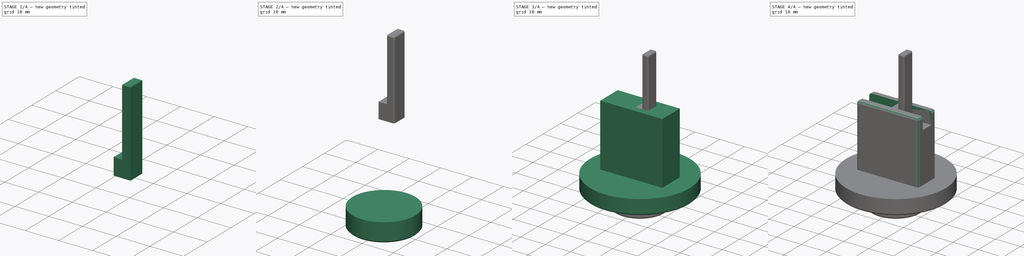
[diagram: build sequence overview — one tinted view per stage of 4, left to right]
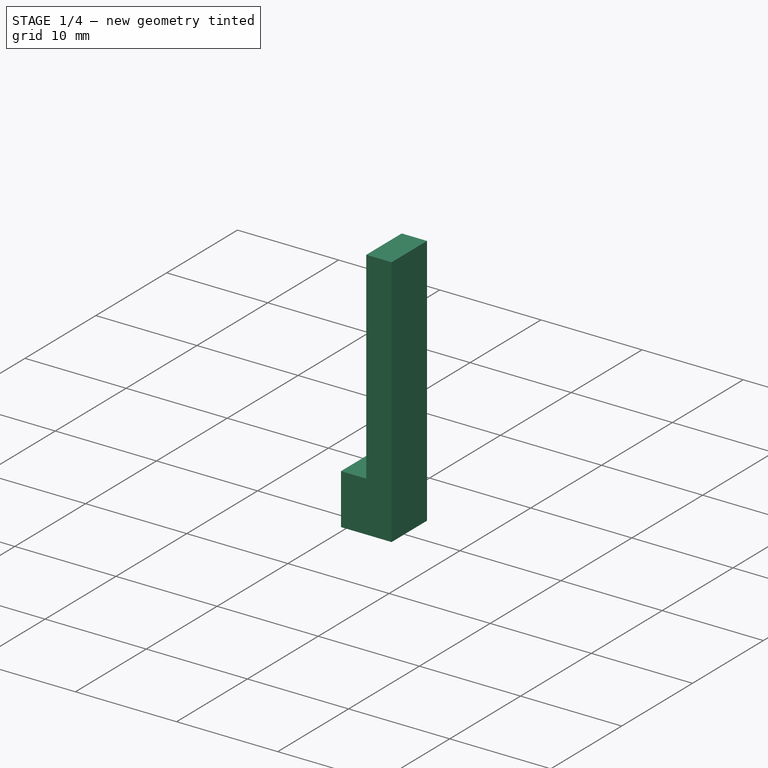
[diagram: stage 1 of 4 — iso view after this stage's code; geometry added in this stage tinted green]
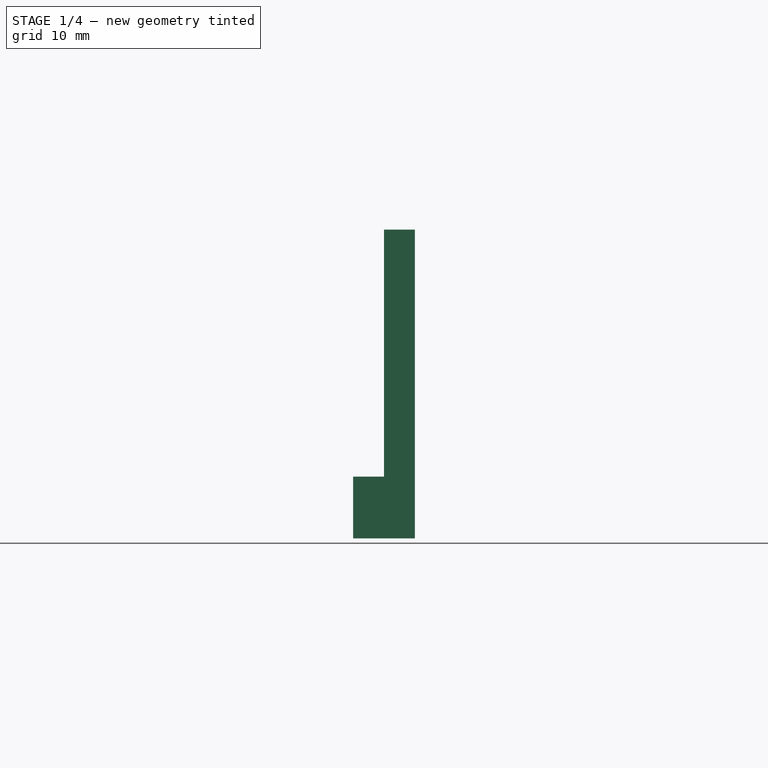
[diagram: stage 1 of 4 — front view after this stage's code; geometry added in this stage tinted green]
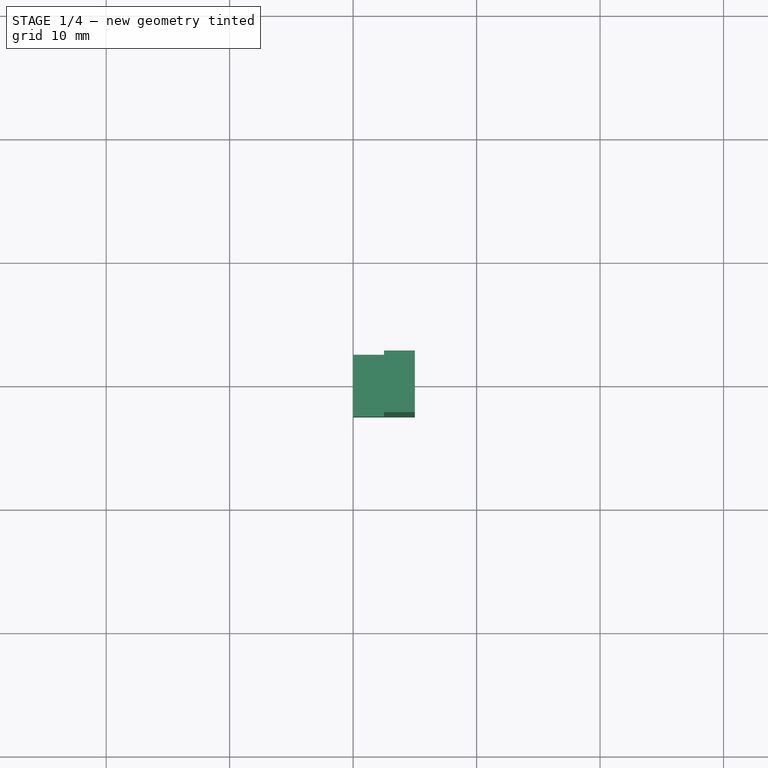
[diagram: stage 1 of 4 — top view after this stage's code; geometry added in this stage tinted green]
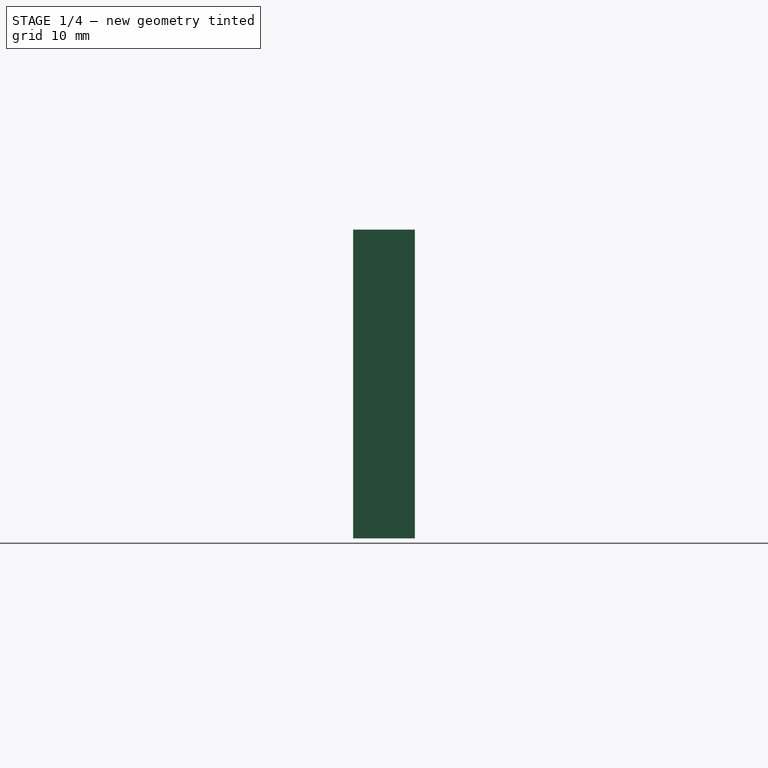
[diagram: stage 1 of 4 — right view after this stage's code; geometry added in this stage tinted green]
FCSTD DOCUMENT  (FreeCAD 0.18.3R)
Label: gripper
License: All rights reserved
LicenseURL: http://en.wikipedia.org/wiki/All_rights_reserved
objects: Sketcher::SketchObject×6, PartDesign::Pad×4, PartDesign::Chamfer×2, PartDesign::Fillet×2, PartDesign::Pocket×2, PartDesign::Body×2, App::Part×1, PartDesign::ShapeBinder×1
note: 25 computed .brp shape members not serialized (recipe doc carries the construction recipe); baked Part::Feature solids carry a one-line shape summary decoded from their .brp

FEATURE [PartDesign::Body] Body
  Group = -> [Sketch,Pad,Chamfer,Sketch001,Pad001,Chamfer001,Sketch002,Pad002,Fillet,Sketch003,Pocket]
  Origin = -> Origin001
  Tip = -> Pocket
FEATURE [PartDesign::ShapeBinder] CopyPocket
  Placement = pos=(0,0,-5) rot=(0,0,1;0rad)
  TraceSupport = false
FEATURE [Sketcher::SketchObject] Sketch004
  MapMode = 5
  Placement = pos=(0,0,32) rot=(0,0,1;0rad)
  Support = -> [CopyPocket]
  sketch-geometry (4):
    g0: LineSegment StartX=0 StartY=2.5 StartZ=0 EndX=5 EndY=2.5 EndZ=0
    g1: LineSegment StartX=5 StartY=2.5 StartZ=0 EndX=5 EndY=-2.5 EndZ=0
    g2: LineSegment StartX=5 StartY=-2.5 StartZ=0 EndX=0 EndY=-2.5 EndZ=0
    g3: LineSegment StartX=0 StartY=-2.5 StartZ=0 EndX=0 EndY=2.5 EndZ=0
  constraints (12):
    c: Coincident(g0,g1)
    c: Coincident(g1,g2)
    c: Coincident(g2,g3)
    c: Coincident(g3,g0)
    c: Horizontal(g0)
    c: Horizontal(g2)
    c: Vertical(g1)
    c: Vertical(g3)
    c: DistanceY(g1,g1) = 5
    c: DistanceY(g-1,g0) = 2.5
    c: DistanceX(g2,g2) = 5
    c: DistanceX(g-1,g0) = 0
FEATURE [PartDesign::Pad] Pad003
  Length = 25
  Length2 = 100
  Placement = pos=(0,0,-5) rot=(0,0,1;0rad)
  Profile = -> Sketch004
  Type = 0
FEATURE [Sketcher::SketchObject] Sketch005
  MapMode = 5
  Placement = pos=(0,0,57) rot=(0,0,1;0rad)
  Support = -> [Pad003]
  sketch-geometry (4):
    g0: LineSegment StartX=0 StartY=2.5 StartZ=0 EndX=2.5 EndY=2.5 EndZ=0
    g1: LineSegment StartX=2.5 StartY=2.5 StartZ=0 EndX=2.5 EndY=-2.5 EndZ=0
    g2: LineSegment StartX=2.5 StartY=-2.5 StartZ=0 EndX=0 EndY=-2.5 EndZ=0
    g3: LineSegment StartX=0 StartY=-2.5 StartZ=0 EndX=0 EndY=2.5 EndZ=0
  constraints (12):
    c: Coincident(g0,g1)
    c: Coincident(g1,g2)
    c: Coincident(g2,g3)
    c: Coincident(g3,g0)
    c: Horizontal(g0)
    c: Horizontal(g2)
    c: Vertical(g1)
    c: Vertical(g3)
    c: DistanceY(g1,g1) = 5
    c: DistanceY(g-1,g0) = 2.5
    c: DistanceX(g0,g0) = 2.5
    c: DistanceX(g-1,g0) = 0
FEATURE [PartDesign::Pocket] Pocket001
  BaseFeature = -> Pad003
  Length = 20
  Length2 = 100
  Placement = pos=(0,0,-5) rot=(0,0,1;0rad)
  Profile = -> Sketch005
  Type = 0
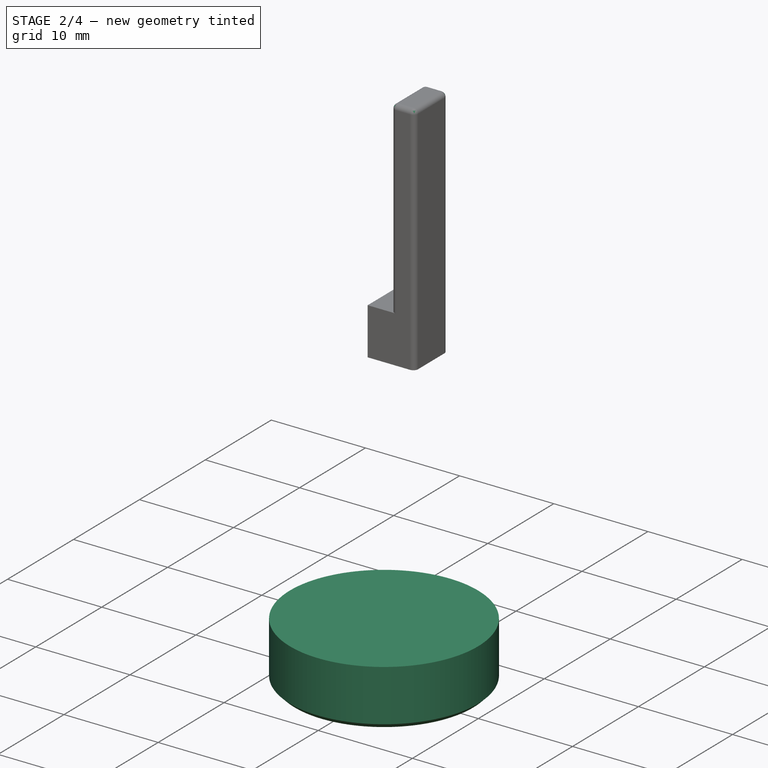
[diagram: stage 2 of 4 — iso view after this stage's code; geometry added in this stage tinted green]
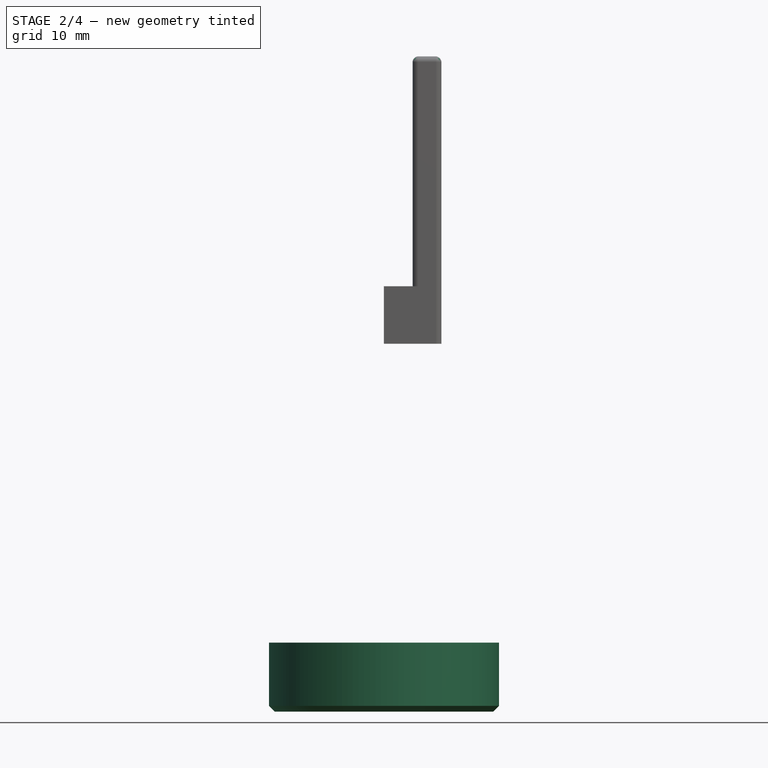
[diagram: stage 2 of 4 — front view after this stage's code; geometry added in this stage tinted green]
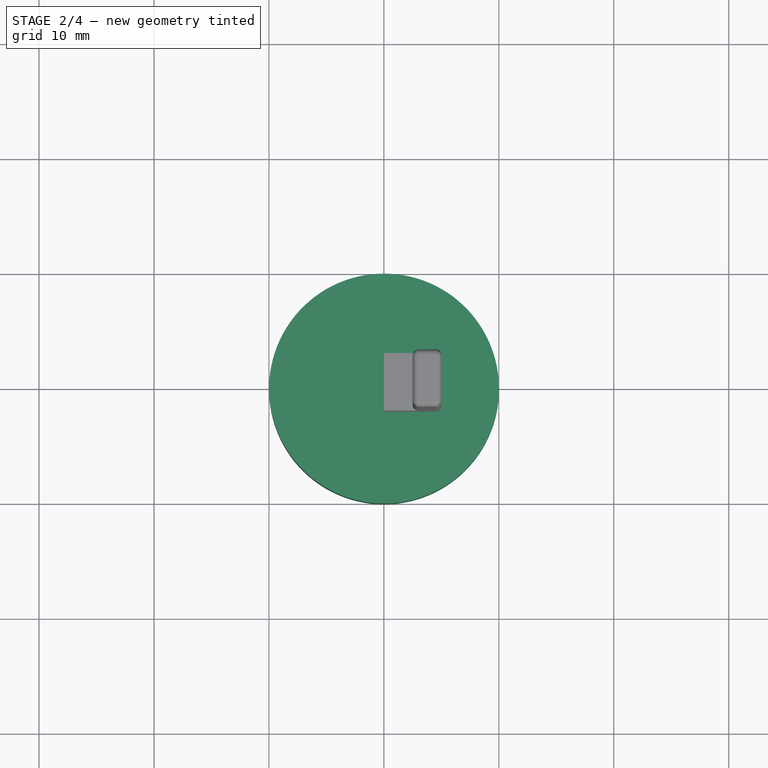
[diagram: stage 2 of 4 — top view after this stage's code; geometry added in this stage tinted green]
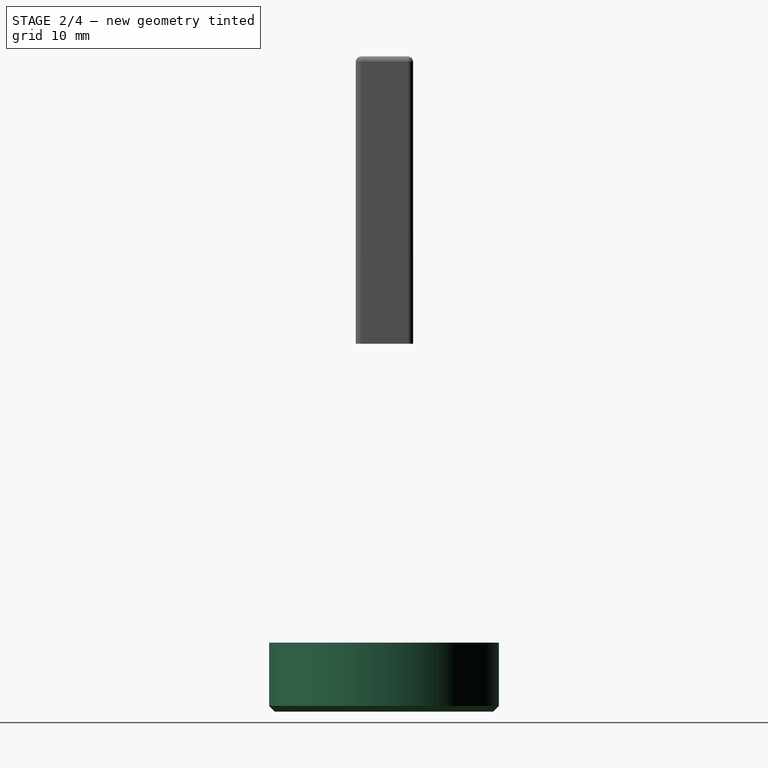
[diagram: stage 2 of 4 — right view after this stage's code; geometry added in this stage tinted green]
FEATURE [App::Part] Part
  Origin = -> Origin
FEATURE [Sketcher::SketchObject] Sketch
  MapMode = 5
  Support = -> [XY_Plane001]
  sketch-geometry (1):
    g0: Circle CenterX=0.010393 CenterY=-0.038773 CenterZ=0 NormalX=0 NormalY=0 NormalZ=1 AngleXU=0 Radius=10
  constraints (1):
    c: Diameter(g0) = 20
FEATURE [PartDesign::Pad] Pad
  Length = 6
  Length2 = 100
  Profile = -> Sketch
  Type = 0
FEATURE [PartDesign::Chamfer] Chamfer
  Base = -> Pad [Edge2]
  BaseFeature = -> Pad
  Size = 0.5
FEATURE [PartDesign::Fillet] Fillet001
  Base = -> Pocket001 [Edge14,Edge12,Edge4,Edge10,Edge2,Edge11,Edge13,Edge3]
  BaseFeature = -> Pocket001
  Placement = pos=(0,0,-5) rot=(0,0,1;0rad)
  Radius = 0.5
FEATURE [PartDesign::Body] Body001  label="Finger"
  Group = -> [CopyPocket,Sketch004,Pad003,Sketch005,Pocket001,Fillet001]
  Origin = -> Origin002
  Tip = -> Fillet001
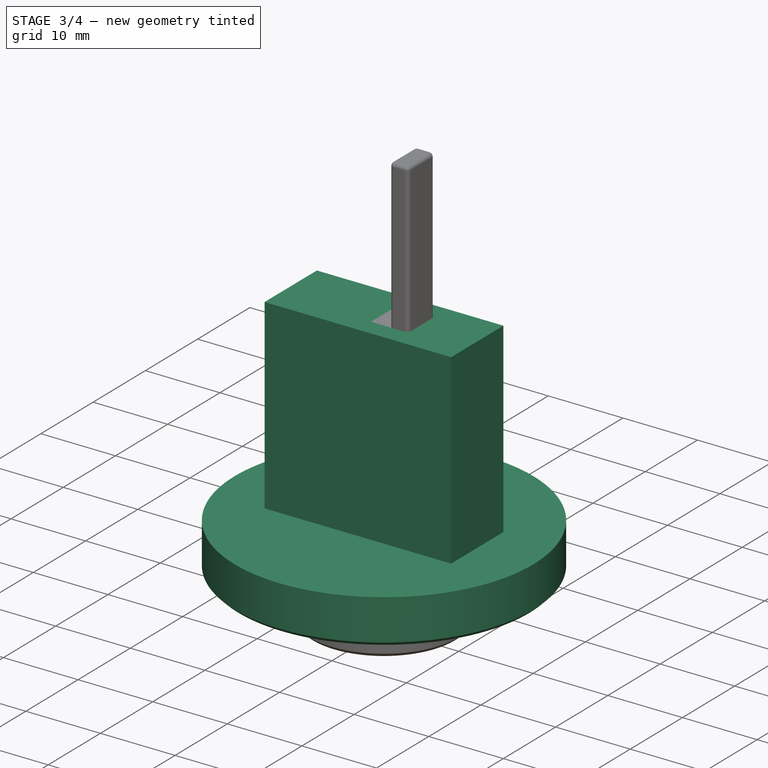
[diagram: stage 3 of 4 — iso view after this stage's code; geometry added in this stage tinted green]
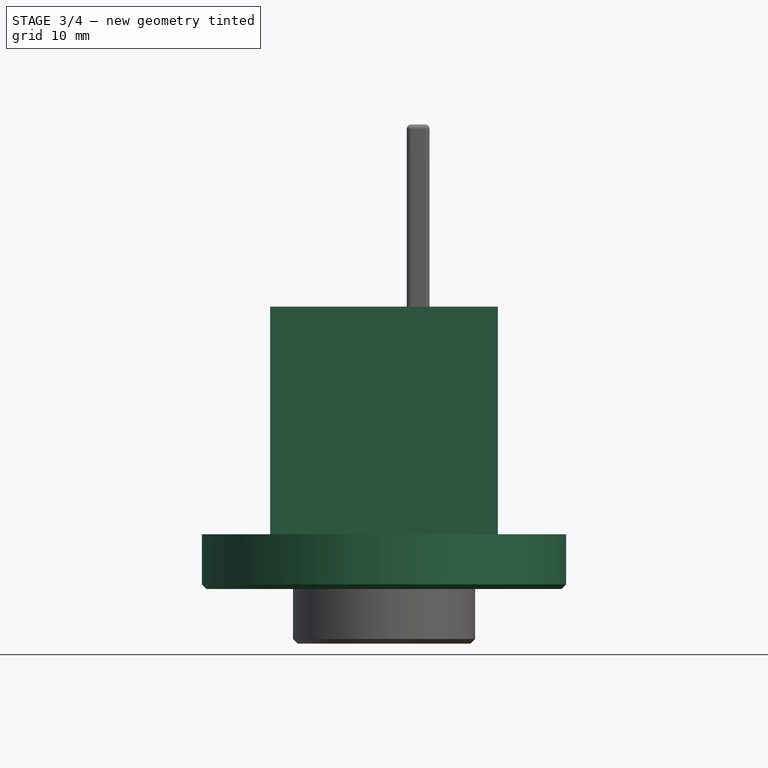
[diagram: stage 3 of 4 — front view after this stage's code; geometry added in this stage tinted green]
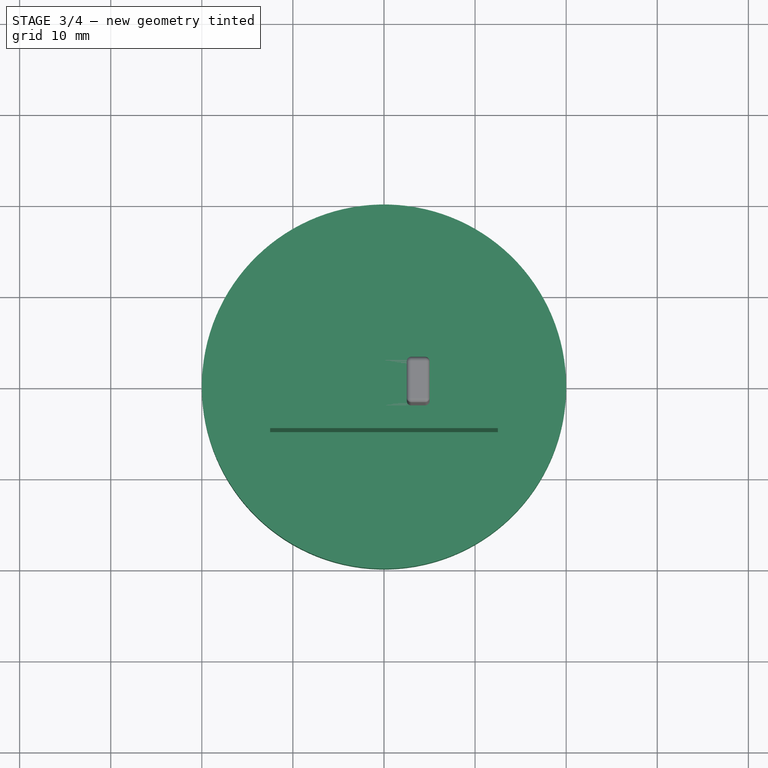
[diagram: stage 3 of 4 — top view after this stage's code; geometry added in this stage tinted green]
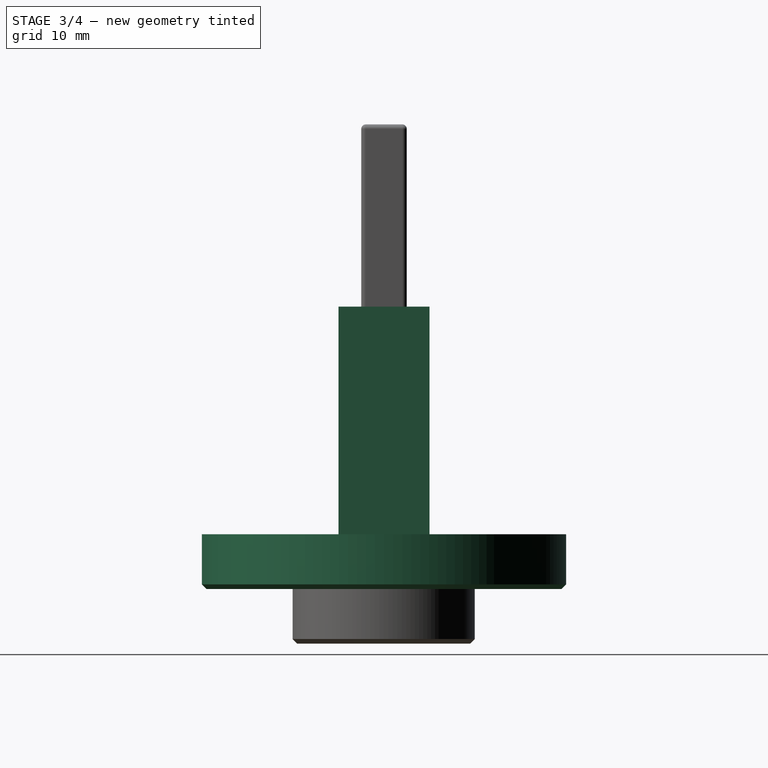
[diagram: stage 3 of 4 — right view after this stage's code; geometry added in this stage tinted green]
FEATURE [Sketcher::SketchObject] Sketch001
  MapMode = 5
  Placement = pos=(0,0,6) rot=(0,0,1;0rad)
  Support = -> [Chamfer]
  sketch-geometry (1):
    g0: Circle CenterX=0 CenterY=0 CenterZ=0 NormalX=0 NormalY=0 NormalZ=1 AngleXU=0 Radius=20
  constraints (1):
    c: Diameter(g0) = 40
FEATURE [PartDesign::Pad] Pad001
  BaseFeature = -> Chamfer
  Length = 6
  Length2 = 100
  Profile = -> Sketch001
  Type = 0
FEATURE [PartDesign::Chamfer] Chamfer001
  Base = -> Pad001 [Edge2]
  BaseFeature = -> Pad001
  Size = 0.5
FEATURE [Sketcher::SketchObject] Sketch002
  MapMode = 5
  Placement = pos=(0,0,12) rot=(0,0,1;0rad)
  Support = -> [Chamfer001]
  sketch-geometry (4):
    g0: LineSegment StartX=-12.5 StartY=5 StartZ=0 EndX=12.5 EndY=5 EndZ=0
    g1: LineSegment StartX=12.5 StartY=5 StartZ=0 EndX=12.5 EndY=-5 EndZ=0
    g2: LineSegment StartX=12.5 StartY=-5 StartZ=0 EndX=-12.5 EndY=-5 EndZ=0
    g3: LineSegment StartX=-12.5 StartY=-5 StartZ=0 EndX=-12.5 EndY=5 EndZ=0
  constraints (12):
    c: Coincident(g0,g1)
    c: Coincident(g1,g2)
    c: Coincident(g2,g3)
    c: Coincident(g3,g0)
    c: Horizontal(g0)
    c: Horizontal(g2)
    c: Vertical(g1)
    c: Vertical(g3)
    c: DistanceX(g0,g0) = 25
    c: DistanceY(g1,g1) = 10
    c: DistanceY(g-1,g0) = 5
    c: DistanceX(g2,g-1) = 12.5
FEATURE [PartDesign::Pad] Pad002
  BaseFeature = -> Chamfer001
  Length = 25
  Length2 = 100
  Profile = -> Sketch002
  Type = 0
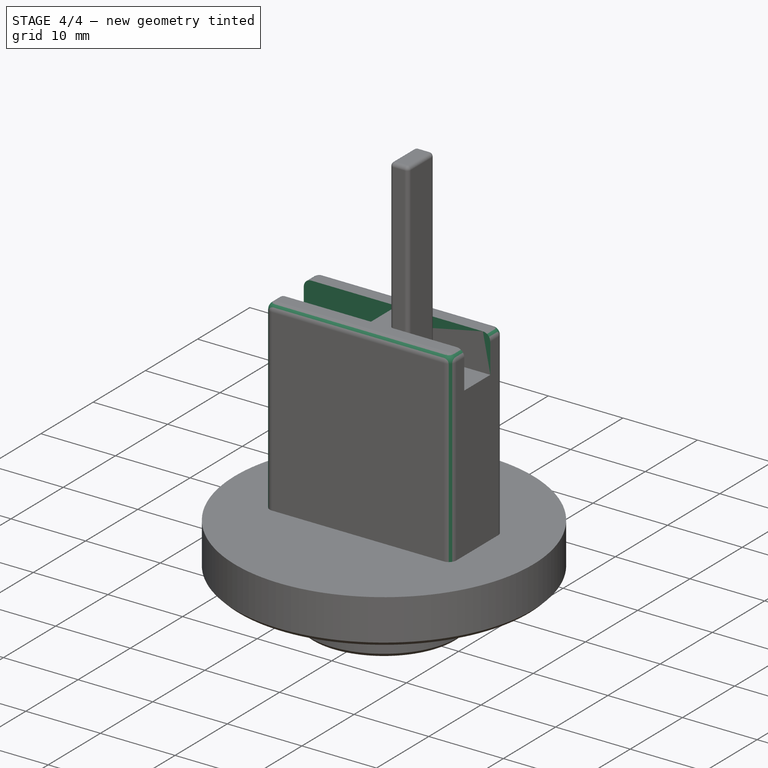
[diagram: stage 4 of 4 — iso view after this stage's code; geometry added in this stage tinted green]
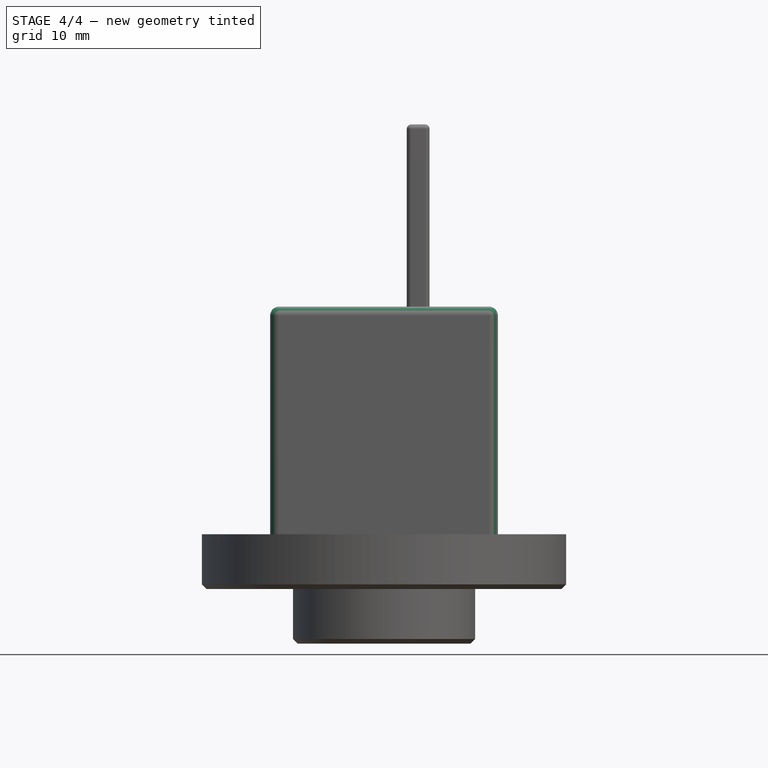
[diagram: stage 4 of 4 — front view after this stage's code; geometry added in this stage tinted green]
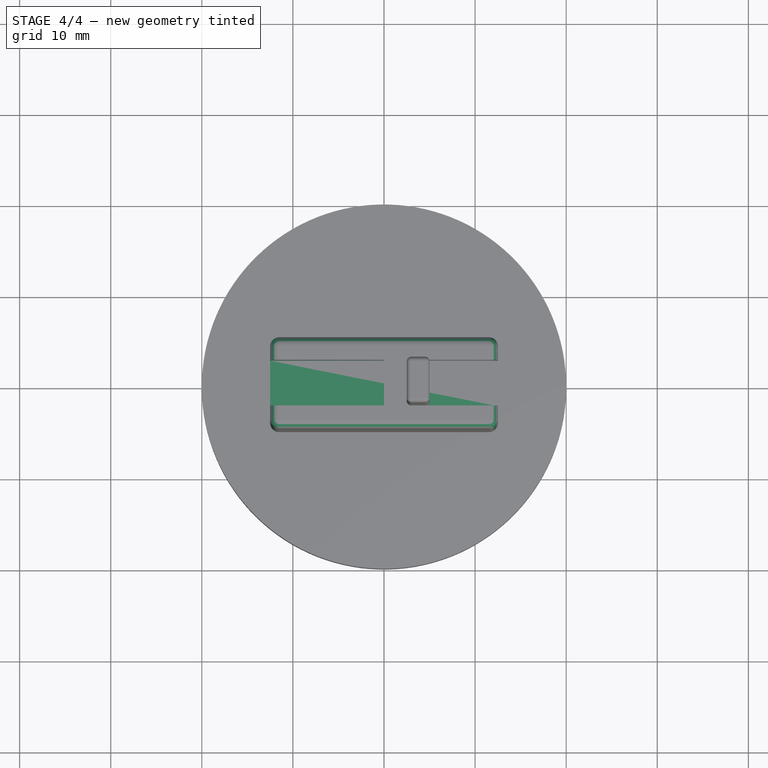
[diagram: stage 4 of 4 — top view after this stage's code; geometry added in this stage tinted green]
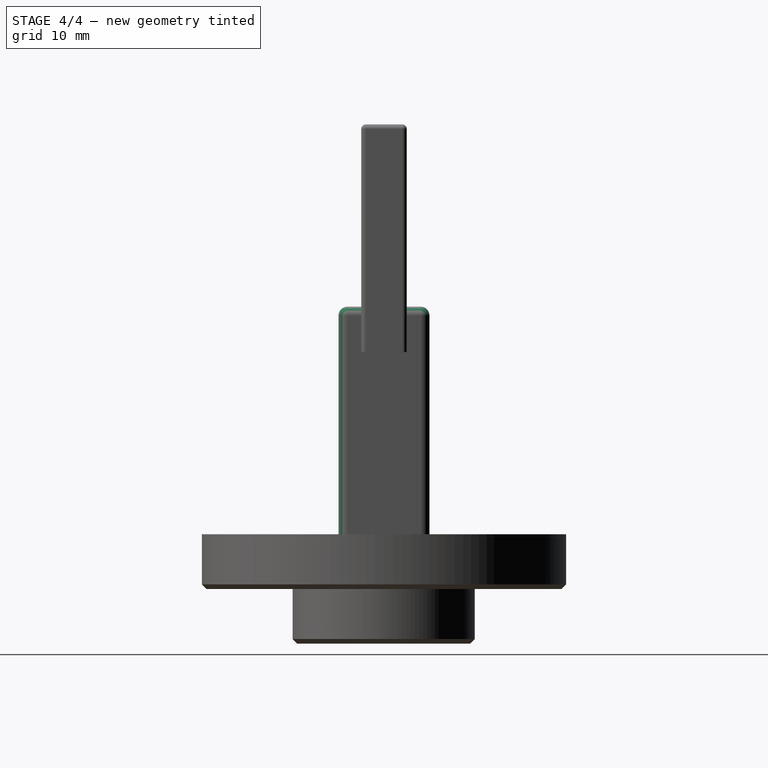
[diagram: stage 4 of 4 — right view after this stage's code; geometry added in this stage tinted green]
FEATURE [PartDesign::Fillet] Fillet
  Base = -> Pad002 [Edge11,Edge12,Edge14,Edge16,Edge15,Edge17,Edge18,Edge13]
  BaseFeature = -> Pad002
  Radius = 1
FEATURE [Sketcher::SketchObject] Sketch003
  MapMode = 5
  Placement = pos=(0,0,37) rot=(0,0,1;0rad)
  Support = -> [Fillet]
  sketch-geometry (4):
    g0: LineSegment StartX=-12.5 StartY=2.5 StartZ=0 EndX=12.5 EndY=2.5 EndZ=0
    g1: LineSegment StartX=12.5 StartY=2.5 StartZ=0 EndX=12.5 EndY=-2.5 EndZ=0
    g2: LineSegment StartX=12.5 StartY=-2.5 StartZ=0 EndX=-12.5 EndY=-2.5 EndZ=0
    g3: LineSegment StartX=-12.5 StartY=-2.5 StartZ=0 EndX=-12.5 EndY=2.5 EndZ=0
  constraints (12):
    c: Coincident(g0,g1)
    c: Coincident(g1,g2)
    c: Coincident(g2,g3)
    c: Coincident(g3,g0)
    c: Horizontal(g0)
    c: Horizontal(g2)
    c: Vertical(g1)
    c: Vertical(g3)
    c: DistanceX(g0,g-1) = 12.5
    c: DistanceY(g-1,g0) = 2.5
    c: DistanceX(g-1,g0) = 12.5
    c: DistanceY(g1,g-1) = 2.5
FEATURE [PartDesign::Pocket] Pocket
  BaseFeature = -> Fillet
  Length = 5
  Length2 = 100
  Profile = -> Sketch003
  Type = 0
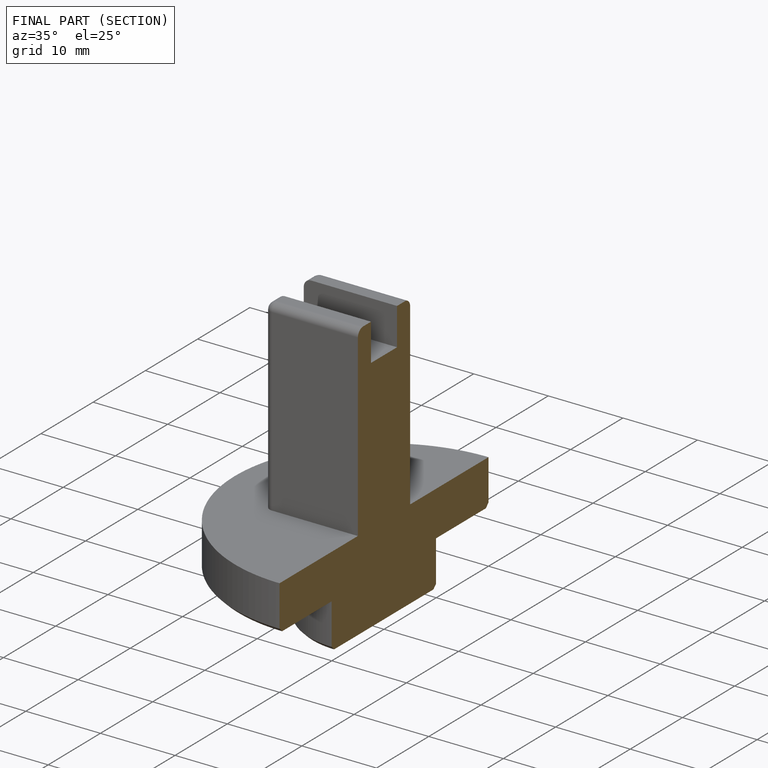
[diagram: finished part — half-section view (interior)]
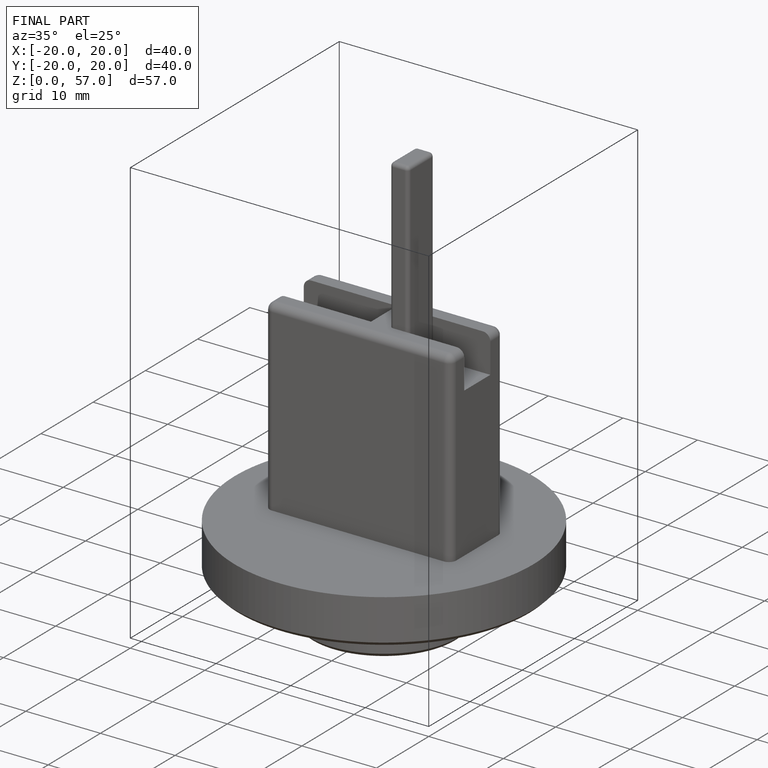
[diagram: finished part — iso view with bounding-box wireframe]
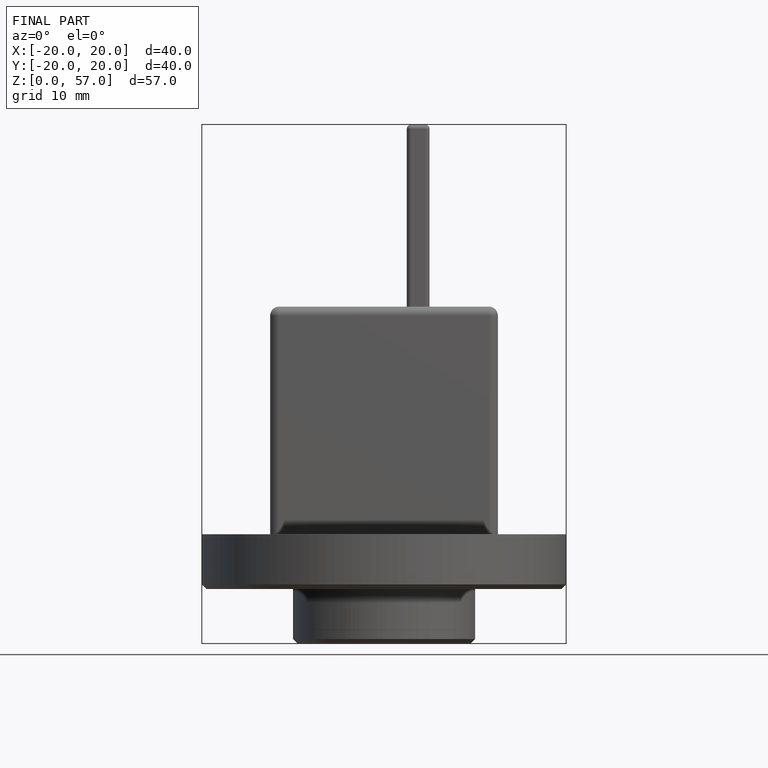
[diagram: finished part — front view with bounding-box wireframe]
